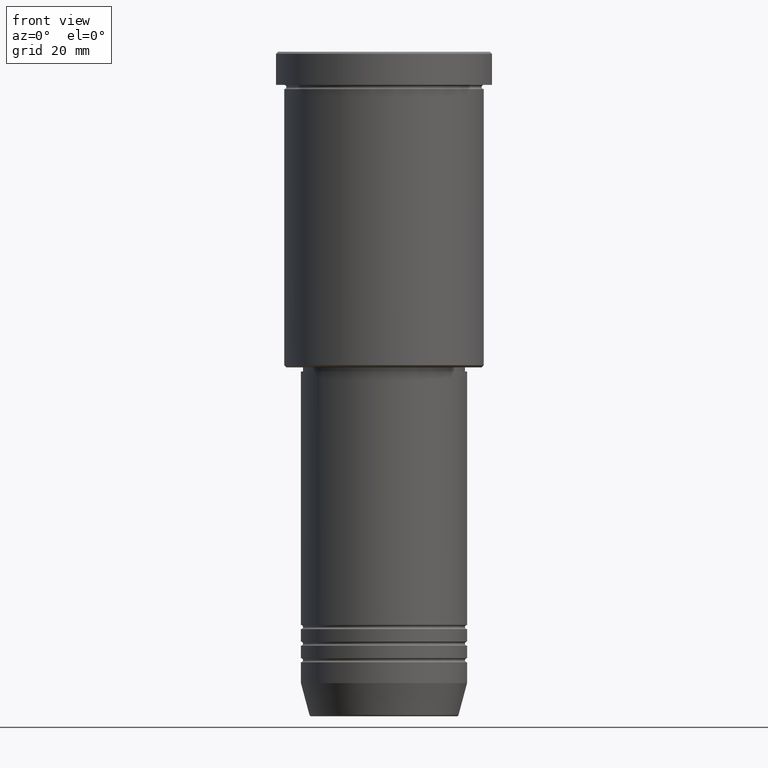
[diagram: clean part render]
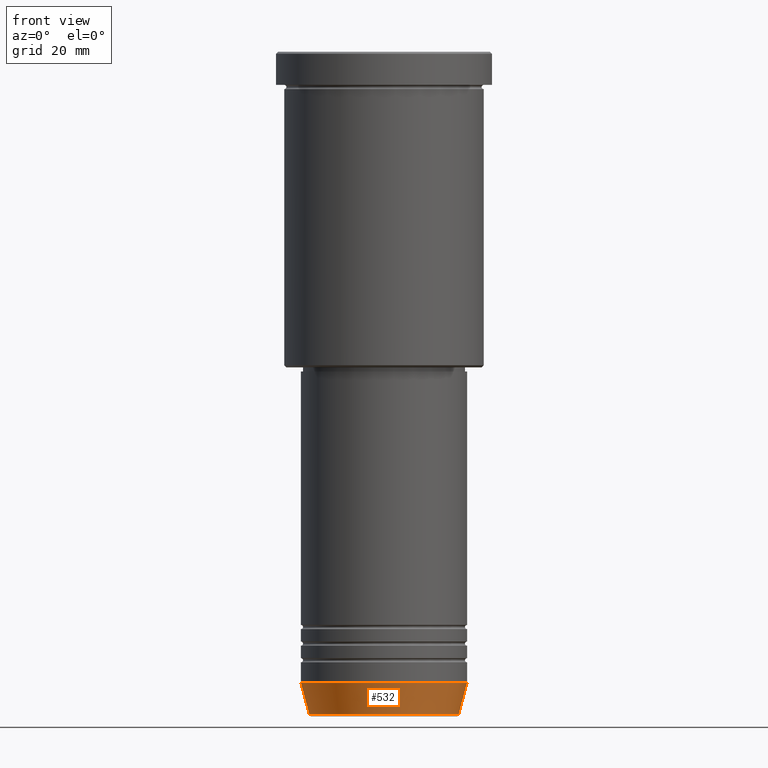
[diagram: same view with one face highlighted and labeled with its STEP entity id]
A machine part, front view. The second image highlights one B-rep face of the part: STEP entity #532.
In plain terms, the highlighted conical surface has half-angle 15 deg.
Its self-contained STEP definition (entity closure, byte-faithful):
#52 = VECTOR ( 'NONE', #354, 1000.000000000000114 ) ;
#76 = LINE ( 'NONE', #815, #52 ) ;
#145 = ORIENTED_EDGE ( 'NONE', *, *, #361, .F. ) ;
#171 = EDGE_CURVE ( 'NONE', #817, #623, #76, .T. ) ;
#229 = CIRCLE ( 'NONE', #401, 17.95570587970607690 ) ;
#230 = ORIENTED_EDGE ( 'NONE', *, *, #171, .F. ) ;
#233 = EDGE_CURVE ( 'NONE', #817, #303, #229, .T. ) ;
#235 = CARTESIAN_POINT ( 'NONE',  ( 0.000000000000000000, 0.000000000000000000, -159.6294095225512706 ) ) ;
#256 = DIRECTION ( 'NONE',  ( 0.2588190451025205174, 0.000000000000000000, 0.9659258262890684232 ) ) ;
#293 = AXIS2_PLACEMENT_3D ( 'NONE', #739, #662, #1028 ) ;
#295 = VECTOR ( 'NONE', #256, 1000.000000000000114 ) ;
#303 = VERTEX_POINT ( 'NONE', #497 ) ;
#328 = CONICAL_SURFACE ( 'NONE', #293, 20.00000000000000355, 0.2617993877991491303 ) ;
#336 = CARTESIAN_POINT ( 'NONE',  ( 0.000000000000000000, 0.000000000000000000, -152.0000000000000000 ) ) ;
#354 = DIRECTION ( 'NONE',  ( -0.2588190451025205174, 3.169619151431761243E-17, 0.9659258262890684232 ) ) ;
#361 = EDGE_CURVE ( 'NONE', #623, #444, #1130, .T. ) ;
#370 = CARTESIAN_POINT ( 'NONE',  ( -17.95570587970607690, 2.324116685748021371E-15, -159.6294095225512706 ) ) ;
#401 = AXIS2_PLACEMENT_3D ( 'NONE', #235, #683, #879 ) ;
#444 = VERTEX_POINT ( 'NONE', #889 ) ;
#466 = CARTESIAN_POINT ( 'NONE',  ( -20.00000000000000355, 2.449293598294706907E-15, -152.0000000000000000 ) ) ;
#477 = FACE_OUTER_BOUND ( 'NONE', #920, .T. ) ;
#497 = CARTESIAN_POINT ( 'NONE',  ( 17.95570587970607690, 0.000000000000000000, -159.6294095225512706 ) ) ;
#532 = ADVANCED_FACE ( 'NONE', ( #477 ), #328, .T. ) ;
#604 = ORIENTED_EDGE ( 'NONE', *, *, #699, .T. ) ;
#623 = VERTEX_POINT ( 'NONE', #466 ) ;
#628 = CARTESIAN_POINT ( 'NONE',  ( 20.00000000000000355, 0.000000000000000000, -152.0000000000000000 ) ) ;
#662 = DIRECTION ( 'NONE',  ( -0.000000000000000000, -0.000000000000000000, 1.000000000000000000 ) ) ;
#683 = DIRECTION ( 'NONE',  ( -0.000000000000000000, -0.000000000000000000, 1.000000000000000000 ) ) ;
#699 = EDGE_CURVE ( 'NONE', #303, #444, #896, .T. ) ;
#717 = ORIENTED_EDGE ( 'NONE', *, *, #233, .T. ) ;
#732 = AXIS2_PLACEMENT_3D ( 'NONE', #336, #999, #1154 ) ;
#739 = CARTESIAN_POINT ( 'NONE',  ( 0.000000000000000000, 0.000000000000000000, -152.0000000000000000 ) ) ;
#815 = CARTESIAN_POINT ( 'NONE',  ( -20.00000000000000355, 2.449293598294706907E-15, -152.0000000000000000 ) ) ;
#817 = VERTEX_POINT ( 'NONE', #370 ) ;
#879 = DIRECTION ( 'NONE',  ( 1.000000000000000000, 0.000000000000000000, 0.000000000000000000 ) ) ;
#889 = CARTESIAN_POINT ( 'NONE',  ( 20.00000000000000355, 0.000000000000000000, -152.0000000000000000 ) ) ;
#896 = LINE ( 'NONE', #628, #295 ) ;
#920 = EDGE_LOOP ( 'NONE', ( #230, #717, #604, #145 ) ) ;
#999 = DIRECTION ( 'NONE',  ( -0.000000000000000000, -0.000000000000000000, 1.000000000000000000 ) ) ;
#1028 = DIRECTION ( 'NONE',  ( 1.000000000000000000, 0.000000000000000000, 0.000000000000000000 ) ) ;
#1130 = CIRCLE ( 'NONE', #732, 20.00000000000000355 ) ;
#1154 = DIRECTION ( 'NONE',  ( 1.000000000000000000, 0.000000000000000000, 0.000000000000000000 ) ) ;